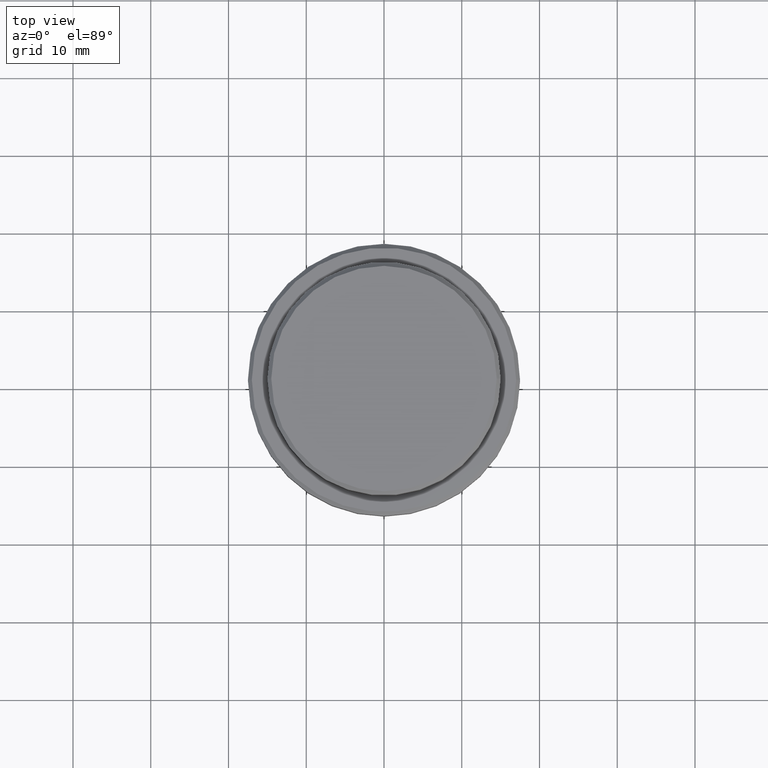
[diagram: clean part render]
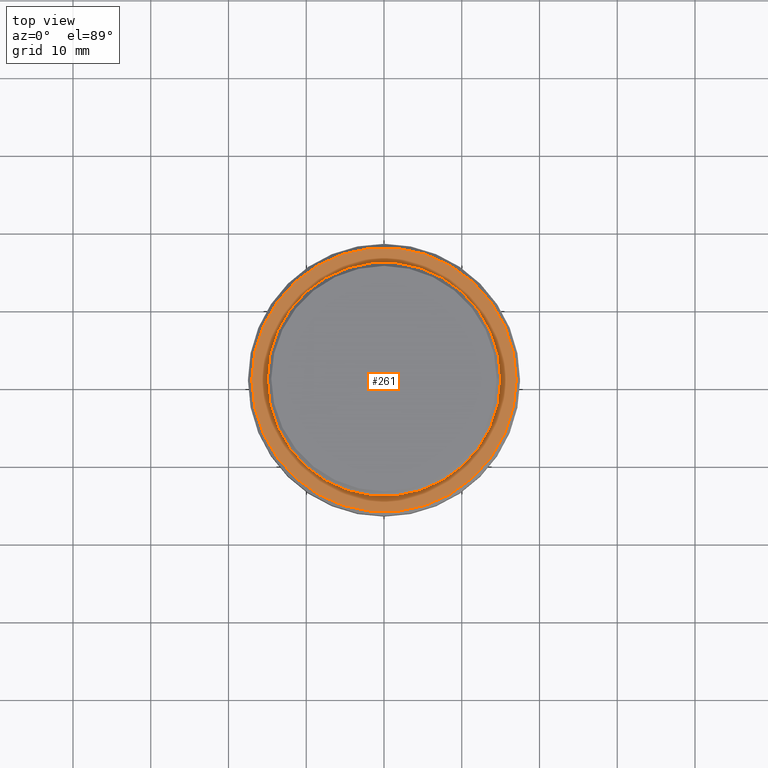
[diagram: same view with one face highlighted and labeled with its STEP entity id]
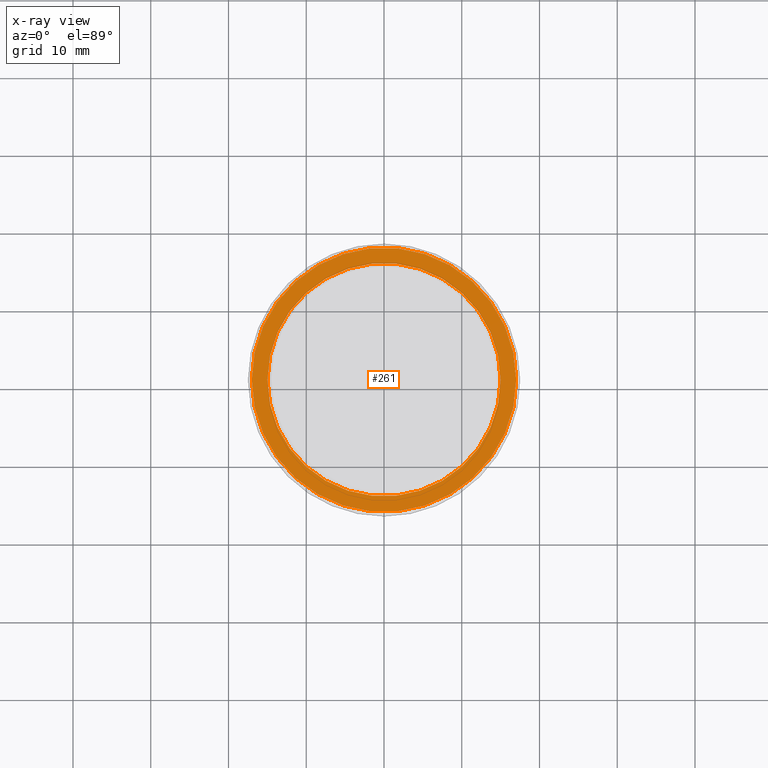
[diagram: x-ray of the same camera — body ghosted, the highlighted face saturated]
A machine part, top view. The second image highlights one B-rep face of the part: STEP entity #261.
The next image is the same camera in x-ray: the body ghosted, the highlighted face saturated — about 0% of this face is hidden behind the body in this view.
In plain terms, the highlighted planar face has unit normal (0, -0, 1).
Its self-contained STEP definition (entity closure, byte-faithful):
#15 = AXIS2_PLACEMENT_3D ( 'NONE', #1238, #1257, #260 ) ;
#81 = EDGE_CURVE ( 'NONE', #478, #1110, #173, .T. ) ;
#136 = EDGE_CURVE ( 'NONE', #1110, #478, #1274, .T. ) ;
#143 = ORIENTED_EDGE ( 'NONE', *, *, #136, .T. ) ;
#164 = DIRECTION ( 'NONE',  ( 1.000000000000000000, 0.000000000000000000, 0.000000000000000000 ) ) ;
#169 = CARTESIAN_POINT ( 'NONE',  ( 14.99999999999999289, 0.000000000000000000, -9.000000000000000000 ) ) ;
#173 = CIRCLE ( 'NONE', #1094, 17.00000000000001421 ) ;
#202 = CIRCLE ( 'NONE', #730, 14.99999999999999289 ) ;
#260 = DIRECTION ( 'NONE',  ( 1.000000000000000000, 0.000000000000000000, 0.000000000000000000 ) ) ;
#261 = ADVANCED_FACE ( 'NONE', ( #1268, #1300 ), #645, .T. ) ;
#340 = ORIENTED_EDGE ( 'NONE', *, *, #81, .T. ) ;
#400 = CARTESIAN_POINT ( 'NONE',  ( 17.00000000000001421, 2.112515728529185250E-15, -9.000000000000000000 ) ) ;
#478 = VERTEX_POINT ( 'NONE', #813 ) ;
#509 = EDGE_CURVE ( 'NONE', #666, #1216, #202, .T. ) ;
#540 = DIRECTION ( 'NONE',  ( 0.000000000000000000, -0.000000000000000000, 1.000000000000000000 ) ) ;
#605 = CARTESIAN_POINT ( 'NONE',  ( 0.000000000000000000, 0.000000000000000000, -9.000000000000000000 ) ) ;
#618 = CIRCLE ( 'NONE', #1203, 14.99999999999999289 ) ;
#645 = PLANE ( 'NONE',  #706 ) ;
#649 = EDGE_LOOP ( 'NONE', ( #1417, #1145 ) ) ;
#666 = VERTEX_POINT ( 'NONE', #169 ) ;
#695 = DIRECTION ( 'NONE',  ( -0.000000000000000000, -0.000000000000000000, 1.000000000000000000 ) ) ;
#706 = AXIS2_PLACEMENT_3D ( 'NONE', #1064, #540, #1081 ) ;
#730 = AXIS2_PLACEMENT_3D ( 'NONE', #1351, #1128, #164 ) ;
#813 = CARTESIAN_POINT ( 'NONE',  ( -17.00000000000001421, 0.000000000000000000, -9.000000000000000000 ) ) ;
#818 = DIRECTION ( 'NONE',  ( 1.000000000000000000, 0.000000000000000000, 0.000000000000000000 ) ) ;
#880 = CARTESIAN_POINT ( 'NONE',  ( -14.99999999999999289, 1.836970198721028800E-15, -9.000000000000000000 ) ) ;
#908 = EDGE_CURVE ( 'NONE', #1216, #666, #618, .T. ) ;
#924 = DIRECTION ( 'NONE',  ( 0.000000000000000000, 0.000000000000000000, -1.000000000000000000 ) ) ;
#1064 = CARTESIAN_POINT ( 'NONE',  ( 0.000000000000000000, 14.49999999999999467, -9.000000000000000000 ) ) ;
#1081 = DIRECTION ( 'NONE',  ( 1.000000000000000000, 0.000000000000000000, 0.000000000000000000 ) ) ;
#1085 = EDGE_LOOP ( 'NONE', ( #340, #143 ) ) ;
#1094 = AXIS2_PLACEMENT_3D ( 'NONE', #1370, #695, #1347 ) ;
#1110 = VERTEX_POINT ( 'NONE', #400 ) ;
#1128 = DIRECTION ( 'NONE',  ( 0.000000000000000000, 0.000000000000000000, -1.000000000000000000 ) ) ;
#1145 = ORIENTED_EDGE ( 'NONE', *, *, #908, .T. ) ;
#1203 = AXIS2_PLACEMENT_3D ( 'NONE', #605, #924, #818 ) ;
#1216 = VERTEX_POINT ( 'NONE', #880 ) ;
#1238 = CARTESIAN_POINT ( 'NONE',  ( 0.000000000000000000, 0.000000000000000000, -9.000000000000000000 ) ) ;
#1257 = DIRECTION ( 'NONE',  ( -0.000000000000000000, -0.000000000000000000, 1.000000000000000000 ) ) ;
#1268 = FACE_OUTER_BOUND ( 'NONE', #1085, .T. ) ;
#1274 = CIRCLE ( 'NONE', #15, 17.00000000000001421 ) ;
#1300 = FACE_BOUND ( 'NONE', #649, .T. ) ;
#1347 = DIRECTION ( 'NONE',  ( 1.000000000000000000, 0.000000000000000000, 0.000000000000000000 ) ) ;
#1351 = CARTESIAN_POINT ( 'NONE',  ( 0.000000000000000000, 0.000000000000000000, -9.000000000000000000 ) ) ;
#1370 = CARTESIAN_POINT ( 'NONE',  ( 0.000000000000000000, 0.000000000000000000, -9.000000000000000000 ) ) ;
#1417 = ORIENTED_EDGE ( 'NONE', *, *, #509, .T. ) ;